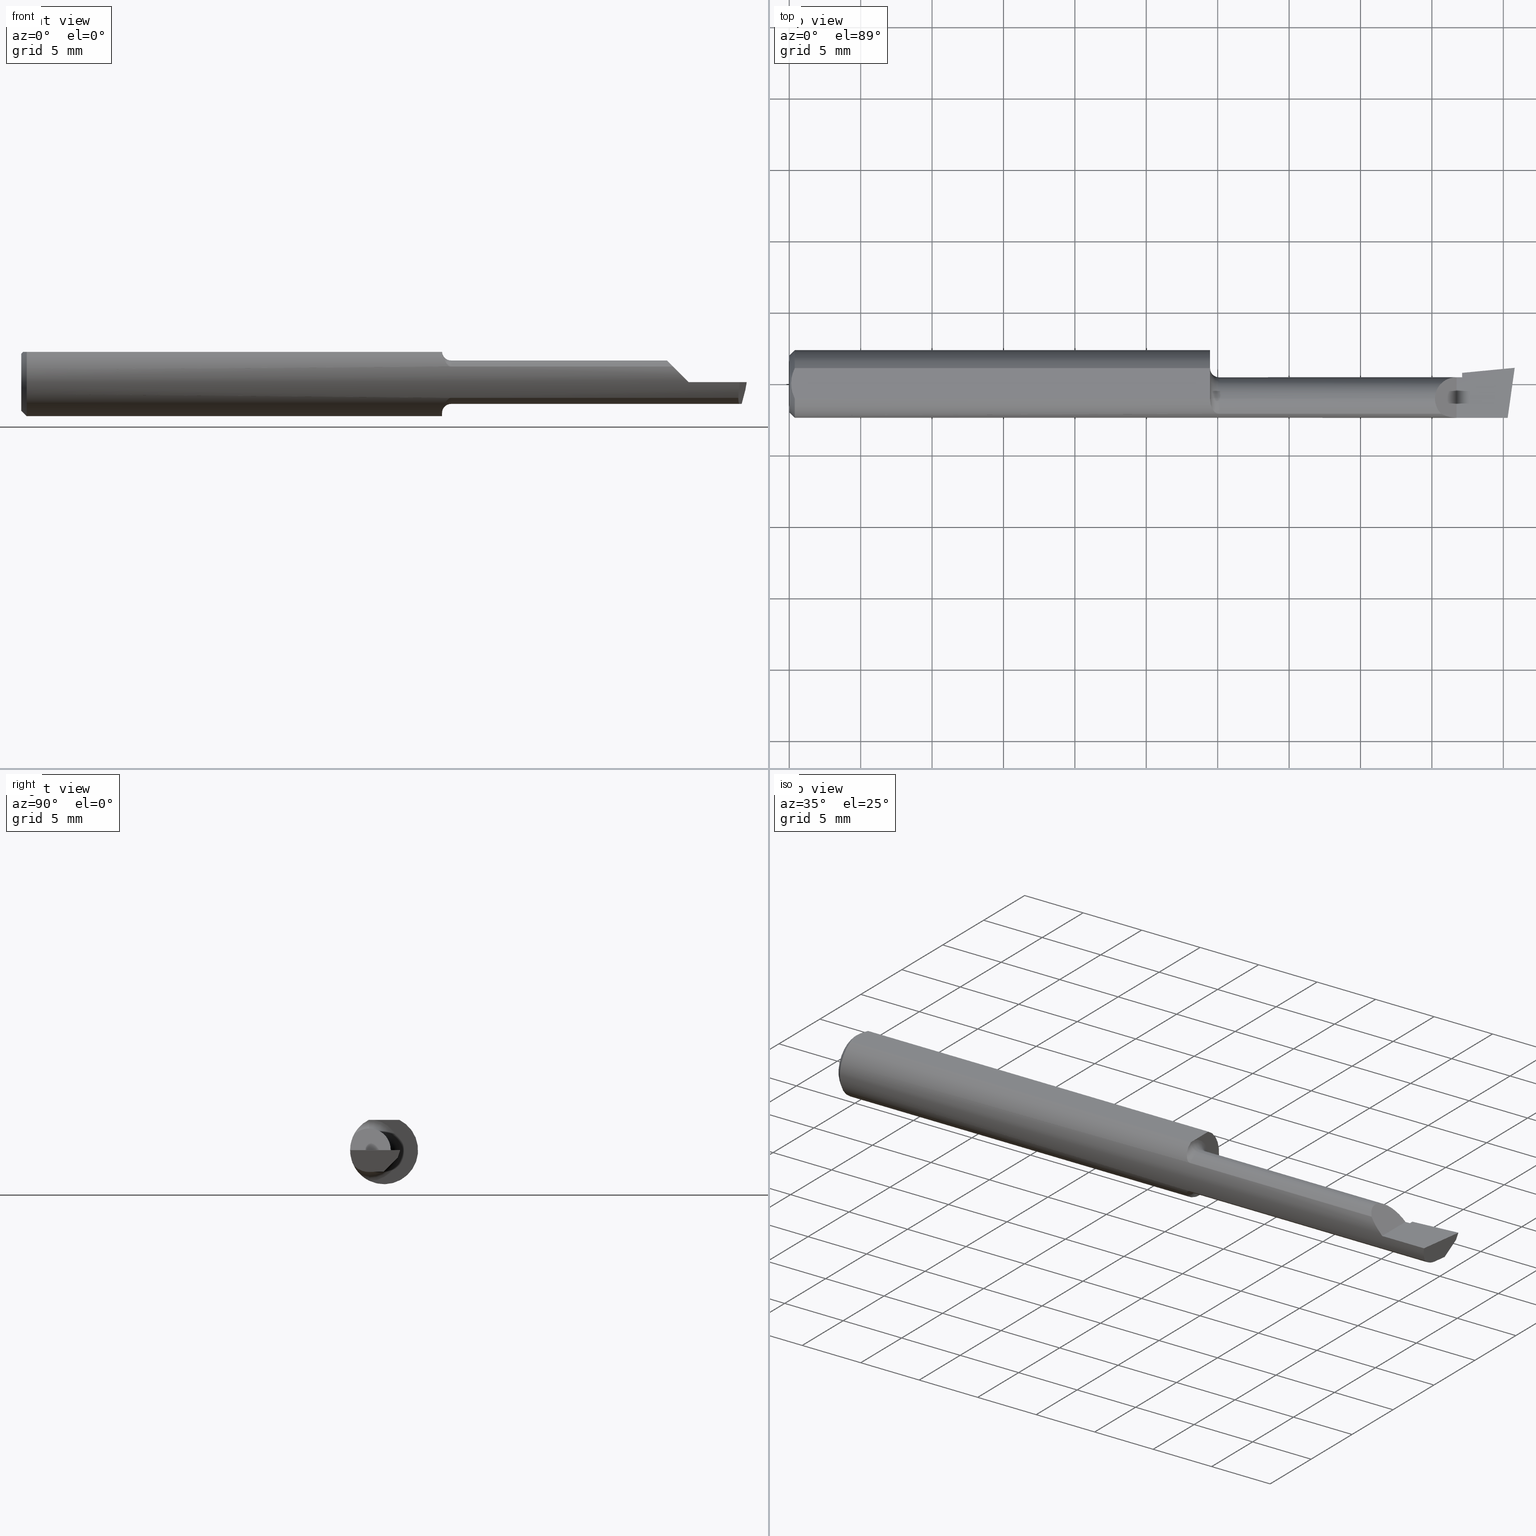
[diagram: canonical four-view strip — front | top / right | iso, engineering-drawing reading convention]
A machine part, canonical four-view strip (front | top / right | iso — engineering-drawing reading convention). The complete STEP part file that produces these views, byte-faithful:
ISO-10303-21;
HEADER;
FILE_DESCRIPTION (( 'STEP AP203' ),
    '1' );
FILE_NAME ('217324-B140800.STEP',
    '2024-04-23T16:12:43',
    ( '' ),
    ( '' ),
    'SwSTEP 2.0',
    'SolidWorks 2022',
    '' );
FILE_SCHEMA (( 'CONFIG_CONTROL_DESIGN' ));
ENDSEC;

DATA;
#1 = CARTESIAN_POINT ( 'NONE',  ( 1.520000000000000240, -0.08307469879518081246, 0.04312255117789283443 ) ) ;
#2 = ADVANCED_FACE ( 'NONE', ( #275 ), #384, .F. ) ;
#3 = VERTEX_POINT ( 'NONE', #586 ) ;
#4 = COORDINATED_UNIVERSAL_TIME_OFFSET ( 8, 0, .BEHIND. ) ;
#5 = CARTESIAN_POINT ( 'NONE',  ( 1.840000000000000080, -0.09360000000000005815, 1.959434878635762025E-17 ) ) ;
#6 = DIRECTION ( 'NONE',  ( 0.000000000000000000, 0.000000000000000000, -1.000000000000000000 ) ) ;
#7 = AXIS2_PLACEMENT_3D ( 'NONE', #139, #197, #510 ) ;
#8 = CIRCLE ( 'NONE', #411, 0.09360000000000001652 ) ;
#9 = DATE_TIME_ROLE ( 'classification_date' ) ;
#10 = CIRCLE ( 'NONE', #177, 0.09360000000000001652 ) ;
#11 = LINE ( 'NONE', #656, #60 ) ;
#12 = EDGE_LOOP ( 'NONE', ( #681, #195, #440, #626, #54 ) ) ;
#13 = APPLICATION_PROTOCOL_DEFINITION ( 'international standard', 'config_control_design', 1994, #523 ) ;
#14 = LINE ( 'NONE', #338, #610 ) ;
#15 = CARTESIAN_POINT ( 'NONE',  ( 5.659797890829555466E-31, -0.09359999999999998876, 1.030335658007946046E-15 ) ) ;
#16 = EDGE_CURVE ( 'NONE', #415, #374, #36, .T. ) ;
#17 = DIRECTION ( 'NONE',  ( 0.000000000000000000, 0.000000000000000000, 1.000000000000000000 ) ) ;
#18 = CARTESIAN_POINT ( 'NONE',  ( 0.01499999999999999598, 0.04209513035969837669, 0.08360000000000000764 ) ) ;
#19 = DIRECTION ( 'NONE',  ( 0.000000000000000000, 0.000000000000000000, 1.000000000000000000 ) ) ;
#20 = AXIS2_PLACEMENT_3D ( 'NONE', #362, #303, #513 ) ;
#21 = AXIS2_PLACEMENT_3D ( 'NONE', #365, #159, #373 ) ;
#22 = DIRECTION ( 'NONE',  ( -1.000000000000000000, -0.000000000000000000, -0.000000000000000000 ) ) ;
#23 = AXIS2_PLACEMENT_3D ( 'NONE', #66, #492, #184 ) ;
#24 = CC_DESIGN_PERSON_AND_ORGANIZATION_ASSIGNMENT ( #594, #392, ( #630 ) ) ;
#25 = DIRECTION ( 'NONE',  ( -1.000000000000000000, -0.000000000000000000, -0.000000000000000000 ) ) ;
#26 = CARTESIAN_POINT ( 'NONE',  ( 1.980500467317811930, -0.04150000000000000216, -0.05990000000000000185 ) ) ;
#27 = APPLICATION_CONTEXT ( 'configuration controlled 3d designs of mechanical parts and assemblies' ) ;
#28 = CARTESIAN_POINT ( 'NONE',  ( 0.005981829149300843529, 0.01454044632356567453, 0.08360000000000003539 ) ) ;
#29 = EDGE_CURVE ( 'NONE', #394, #271, #288, .T. ) ;
#30 = VERTEX_POINT ( 'NONE', #412 ) ;
#31 = CARTESIAN_POINT ( 'NONE',  ( 0.01499999999999999598, 0.000000000000000000, -0.09360000000000001652 ) ) ;
#32 = VECTOR ( 'NONE', #37, 39.37007874015748143 ) ;
#33 = CARTESIAN_POINT ( 'NONE',  ( 1.520000000000000240, -0.08307469879518081246, -0.04312255117789283443 ) ) ;
#34 = EDGE_LOOP ( 'NONE', ( #498, #349 ) ) ;
#35 = CARTESIAN_POINT ( 'NONE',  ( 2.000000000000000000, 0.1436000000000000332, 0.08359999999999999376 ) ) ;
#36 = CIRCLE ( 'NONE', #549, 0.08489999999999991998 ) ;
#37 = DIRECTION ( 'NONE',  ( 0.000000000000000000, 1.000000000000000000, 0.000000000000000000 ) ) ;
#38 = ORIENTED_EDGE ( 'NONE', *, *, #585, .F. ) ;
#39 = CARTESIAN_POINT ( 'NONE',  ( 1.976737781047570364, -0.08307469879518081246, -0.04312255117789283443 ) ) ;
#40 = DIRECTION ( 'NONE',  ( -1.000000000000000000, -0.000000000000000000, -0.000000000000000000 ) ) ;
#41 = ORIENTED_EDGE ( 'NONE', *, *, #73, .F. ) ;
#42 = EDGE_CURVE ( 'NONE', #532, #51, #377, .T. ) ;
#43 = CARTESIAN_POINT ( 'NONE',  ( 1.160000000000000142, -0.04014498638740782860, -0.08455714216888012003 ) ) ;
#44 = LINE ( 'NONE', #267, #278 ) ;
#45 = ORIENTED_EDGE ( 'NONE', *, *, #508, .F. ) ;
#46 = LOCAL_TIME ( 9, 12, 43.00000000000000000, #118 ) ;
#47 = FACE_OUTER_BOUND ( 'NONE', #281, .T. ) ;
#48 = CC_DESIGN_DATE_AND_TIME_ASSIGNMENT ( #61, #9, ( #274 ) ) ;
#49 = CARTESIAN_POINT ( 'NONE',  ( 1.175413575230843666, -0.08042664989327168168, 0.04791921015131045403 ) ) ;
#50 = AXIS2_PLACEMENT_3D ( 'NONE', #35, #561, #82 ) ;
#51 = VERTEX_POINT ( 'NONE', #657 ) ;
#52 = FACE_OUTER_BOUND ( 'NONE', #100, .T. ) ;
#53 = EDGE_CURVE ( 'NONE', #140, #271, #631, .T. ) ;
#54 = ORIENTED_EDGE ( 'NONE', *, *, #55, .T. ) ;
#55 = EDGE_CURVE ( 'NONE', #437, #596, #473, .T. ) ;
#56 = CARTESIAN_POINT ( 'NONE',  ( 1.959426181223736352, -0.2442977216421195752, -4.600835489049771365E-17 ) ) ;
#57 = ORIENTED_EDGE ( 'NONE', *, *, #63, .T. ) ;
#58 = AXIS2_PLACEMENT_3D ( 'NONE', #307, #474, #525 ) ;
#59 = ORIENTED_EDGE ( 'NONE', *, *, #63, .F. ) ;
#60 = VECTOR ( 'NONE', #346, 39.37007874015748854 ) ;
#61 = DATE_AND_TIME ( #65, #607 ) ;
#62 = DIRECTION ( 'NONE',  ( 0.000000000000000000, 0.000000000000000000, 1.000000000000000000 ) ) ;
#63 = EDGE_CURVE ( 'NONE', #535, #3, #353, .T. ) ;
#64 = VERTEX_POINT ( 'NONE', #553 ) ;
#65 = CALENDAR_DATE ( 2024, 23, 4 ) ;
#66 = CARTESIAN_POINT ( 'NONE',  ( 0.000000000000000000, 0.000000000000000000, 0.000000000000000000 ) ) ;
#67 = CARTESIAN_POINT ( 'NONE',  ( 0.000000000000000000, 0.000000000000000000, 0.000000000000000000 ) ) ;
#68 = APPROVAL_ROLE ( '' ) ;
#69 = CARTESIAN_POINT ( 'NONE',  ( 2.000000000000000000, -0.04150000000000000216, -0.05990000000000000185 ) ) ;
#70 = VERTEX_POINT ( 'NONE', #74 ) ;
#71 = DATE_TIME_ROLE ( 'creation_date' ) ;
#72 = DIRECTION ( 'NONE',  ( -1.000000000000000000, -0.000000000000000000, -0.000000000000000000 ) ) ;
#73 = EDGE_CURVE ( 'NONE', #421, #532, #521, .T. ) ;
#74 = CARTESIAN_POINT ( 'NONE',  ( 1.160033712670299977, -0.04209513036081732190, 0.08360000000000000764 ) ) ;
#75 = ADVANCED_FACE ( 'NONE', ( #293 ), #152, .F. ) ;
#76 = CYLINDRICAL_SURFACE ( 'NONE', #23, 0.09360000000000001652 ) ;
#77 = CARTESIAN_POINT ( 'NONE',  ( 0.01499999999999999944, -0.04209513035969835587, 0.08360000000000000764 ) ) ;
#78 = ORIENTED_EDGE ( 'NONE', *, *, #327, .F. ) ;
#79 = CARTESIAN_POINT ( 'NONE',  ( 1.995372633473332602, 0.03556691549515143130, -0.02730803879157319217 ) ) ;
#80 = CARTESIAN_POINT ( 'NONE',  ( 1.780099999999999349, -0.04150000000000000216, 0.05989999999999996022 ) ) ;
#81 = ADVANCED_FACE ( 'NONE', ( #343 ), #203, .T. ) ;
#82 = DIRECTION ( 'NONE',  ( 0.000000000000000000, 1.000000000000000000, -1.189000693621284344E-16 ) ) ;
#83 = VECTOR ( 'NONE', #650, 39.37007874015748854 ) ;
#84 = ADVANCED_FACE ( 'NONE', ( #551 ), #126, .T. ) ;
#85 = CARTESIAN_POINT ( 'NONE',  ( 0.01499999999999999598, 1.146269404001922775E-17, 0.09360000000000001652 ) ) ;
#86 =( BOUNDED_CURVE ( )  B_SPLINE_CURVE ( 3, ( #147, #138, #94, #463 ),
 .UNSPECIFIED., .F., .F. ) 
 B_SPLINE_CURVE_WITH_KNOTS ( ( 4, 4 ),
 ( 0.000000000000000000, 1.570796326794896558 ),
 .UNSPECIFIED. ) 
 CURVE ( )  GEOMETRIC_REPRESENTATION_ITEM ( )  RATIONAL_B_SPLINE_CURVE ( ( 1.000000000000000000, 0.8047378541243649375, 0.8047378541243649375, 1.000000000000000000 ) ) 
 REPRESENTATION_ITEM ( '' )  );
#87 = EDGE_LOOP ( 'NONE', ( #117, #41, #589, #401 ) ) ;
#88 = CARTESIAN_POINT ( 'NONE',  ( 1.167076397983111580, -0.07187891021191479546, -0.06019546731975692483 ) ) ;
#89 = CARTESIAN_POINT ( 'NONE',  ( 1.796877448822106649, -0.08307469879518082634, 0.04312255117789279973 ) ) ;
#90 =( BOUNDED_CURVE ( )  B_SPLINE_CURVE ( 3, ( #672, #658, #557, #26 ),
 .UNSPECIFIED., .F., .F. ) 
 B_SPLINE_CURVE_WITH_KNOTS ( ( 4, 4 ),
 ( 0.08075344428592796941, 0.8478785220698573655 ),
 .UNSPECIFIED. ) 
 CURVE ( )  GEOMETRIC_REPRESENTATION_ITEM ( )  RATIONAL_B_SPLINE_CURVE ( ( 1.000000000000000000, 0.9515582177473687064, 0.9515582177473687064, 1.000000000000000000 ) ) 
 REPRESENTATION_ITEM ( '' )  );
#91 = CARTESIAN_POINT ( 'NONE',  ( 1.182100790213033825, -0.08307469879518074307, -0.04312255117789293851 ) ) ;
#92 = PRODUCT_RELATED_PRODUCT_CATEGORY ( 'detail', '', ( #110 ) ) ;
#93 = DIRECTION ( 'NONE',  ( 0.000000000000000000, 0.000000000000000000, 1.000000000000000000 ) ) ;
#94 = CARTESIAN_POINT ( 'NONE',  ( 1.804911392386147506, 0.01839999999999995459, 0.03508860761385158150 ) ) ;
#95 = LINE ( 'NONE', #309, #344 ) ;
#96 = EDGE_CURVE ( 'NONE', #132, #421, #356, .T. ) ;
#97 = ORIENTED_EDGE ( 'NONE', *, *, #407, .F. ) ;
#98 = DIRECTION ( 'NONE',  ( 1.000000000000000000, 0.000000000000000000, 0.000000000000000000 ) ) ;
#99 = DIRECTION ( 'NONE',  ( -1.000000000000000000, -0.000000000000000000, -0.000000000000000000 ) ) ;
#100 = EDGE_LOOP ( 'NONE', ( #38, #636, #265, #449, #491 ) ) ;
#101 = CARTESIAN_POINT ( 'NONE',  ( 1.169277238843646760, -0.07518688180277835476, 0.05595855205935822835 ) ) ;
#102 = VERTEX_POINT ( 'NONE', #611 ) ;
#103 =( LENGTH_UNIT ( ) NAMED_UNIT ( * ) SI_UNIT ( $, .METRE. ) );
#104 = EDGE_CURVE ( 'NONE', #30, #596, #131, .T. ) ;
#105 = EDGE_CURVE ( 'NONE', #596, #371, #198, .T. ) ;
#106 = CIRCLE ( 'NONE', #426, 0.07859999999999965625 ) ;
#107 = EDGE_LOOP ( 'NONE', ( #59, #577, #166, #199, #671, #593, #255, #323, #368, #301, #580, #45, #570 ) ) ;
#108 = CARTESIAN_POINT ( 'NONE',  ( 1.160000000000000142, 0.1436000000000000332, 0.08359999999999999376 ) ) ;
#109 = VERTEX_POINT ( 'NONE', #253 ) ;
#110 = PRODUCT ( '217324-B140800', '217324-B140800', '', ( #397 ) ) ;
#111 = DIRECTION ( 'NONE',  ( -1.000000000000000000, -0.000000000000000000, -0.000000000000000000 ) ) ;
#112 = LOCAL_TIME ( 9, 12, 43.00000000000000000, #235 ) ;
#113 = CARTESIAN_POINT ( 'NONE',  ( 1.160163936266329632, -0.04714148439379606259, 0.08105900800344767454 ) ) ;
#114 = EDGE_LOOP ( 'NONE', ( #640, #176, #583, #685, #529, #563 ) ) ;
#115 = AXIS2_PLACEMENT_3D ( 'NONE', #158, #431, #536 ) ;
#116 = PLANE ( 'NONE',  #290 ) ;
#117 = ORIENTED_EDGE ( 'NONE', *, *, #42, .F. ) ;
#118 = COORDINATED_UNIVERSAL_TIME_OFFSET ( 8, 0, .BEHIND. ) ;
#119 = CARTESIAN_POINT ( 'NONE',  ( 0.000000000000000000, -0.04150000000000000216, 0.05989999999999996022 ) ) ;
#120 = EDGE_LOOP ( 'NONE', ( #471, #251, #326, #482 ) ) ;
#121 = APPROVAL_ROLE ( '' ) ;
#122 = CARTESIAN_POINT ( 'NONE',  ( 1.854999999999999982, -0.04150000000000000216, -0.05990000000000000185 ) ) ;
#123 = ADVANCED_FACE ( 'NONE', ( #188 ), #143, .F. ) ;
#124 = ADVANCED_FACE ( 'NONE', ( #467 ), #676, .F. ) ;
#125 = ORIENTED_EDGE ( 'NONE', *, *, #497, .T. ) ;
#126 = CONICAL_SURFACE ( 'NONE', #231, 0.09360000000000001652, 0.7853981633974601584 ) ;
#127 = PERSON_AND_ORGANIZATION ( #404, #259 ) ;
#128 = AXIS2_PLACEMENT_3D ( 'NONE', #169, #574, #324 ) ;
#129 = DIRECTION ( 'NONE',  ( -0.1591707190595631760, -0.3038377020810786866, -0.9393334514367894794 ) ) ;
#130 = B_SPLINE_CURVE_WITH_KNOTS ( 'NONE', 3,
 ( #360, #91, #154, #470, #461, #193, #88, #409, #666, #366, #669, #422 ),
 .UNSPECIFIED., .F., .F.,
 ( 4, 2, 2, 2, 2, 4 ),
 ( 1.963546462201886234E-07, 0.0002171101490734176048, 0.0004340239435006150535, 0.0008678515323550098966, 0.001301679121209404740, 0.001735506710063799583 ),
 .UNSPECIFIED. ) ;
#131 = LINE ( 'NONE', #85, #558 ) ;
#132 = VERTEX_POINT ( 'NONE', #601 ) ;
#133 = PERSON_AND_ORGANIZATION_ROLE ( 'design_owner' ) ;
#134 = DIRECTION ( 'NONE',  ( 0.9953961983671787417, 0.09584575252022466130, -5.467869873542577569E-16 ) ) ;
#135 = DIRECTION ( 'NONE',  ( 1.000000000000000000, 0.000000000000000000, 0.000000000000000000 ) ) ;
#136 =( BOUNDED_CURVE ( )  B_SPLINE_CURVE ( 3, ( #242, #591, #180, #547 ),
 .UNSPECIFIED., .F., .T. ) 
 B_SPLINE_CURVE_WITH_KNOTS ( ( 4, 4 ),
 ( 0.2441216721730426198, 0.7229178047250387484 ),
 .UNSPECIFIED. ) 
 CURVE ( )  GEOMETRIC_REPRESENTATION_ITEM ( )  RATIONAL_B_SPLINE_CURVE ( ( 1.000000000000000000, 0.9809872534005956712, 0.9809872534005956712, 1.000000000000000000 ) ) 
 REPRESENTATION_ITEM ( '' )  );
#137 = EDGE_CURVE ( 'NONE', #599, #437, #8, .T. ) ;
#138 = CARTESIAN_POINT ( 'NONE',  ( 1.780099999999999349, -0.006411392386148422398, 0.05989999999999994634 ) ) ;
#139 = CARTESIAN_POINT ( 'NONE',  ( 0.000000000000000000, -0.04150000000000000216, 0.000000000000000000 ) ) ;
#140 = VERTEX_POINT ( 'NONE', #673 ) ;
#141 = DIRECTION ( 'NONE',  ( -0.7071067811865433539, 0.000000000000000000, -0.7071067811865516806 ) ) ;
#142 = AXIS2_PLACEMENT_3D ( 'NONE', #466, #512, #416 ) ;
#143 = PLANE ( 'NONE',  #20 ) ;
#144 = EDGE_LOOP ( 'NONE', ( #224, #545, #573, #214 ) ) ;
#145 = FACE_OUTER_BOUND ( 'NONE', #87, .T. ) ;
#146 = CARTESIAN_POINT ( 'NONE',  ( 1.854999999999999982, -0.2500000000000000555, 1.135460985248596835E-17 ) ) ;
#147 = CARTESIAN_POINT ( 'NONE',  ( 1.780099999999999349, -0.04150000000000000216, 0.05989999999999996022 ) ) ;
#148 = EDGE_CURVE ( 'NONE', #271, #3, #256, .T. ) ;
#149 = CC_DESIGN_SECURITY_CLASSIFICATION ( #274, ( #317 ) ) ;
#150 = CARTESIAN_POINT ( 'NONE',  ( 0.01499999999999999598, 0.000000000000000000, 0.000000000000000000 ) ) ;
#151 = ORIENTED_EDGE ( 'NONE', *, *, #399, .F. ) ;
#152 = TOROIDAL_SURFACE ( 'NONE', #410, 0.08489999999999991998, 0.02499999999999993894 ) ;
#153 = B_SPLINE_CURVE_WITH_KNOTS ( 'NONE', 3,
 ( #299, #305, #43, #252 ),
 .UNSPECIFIED., .F., .F.,
 ( 4, 4 ),
 ( 0.001735506710063799583, 0.001793010945052101509 ),
 .UNSPECIFIED. ) ;
#154 = CARTESIAN_POINT ( 'NONE',  ( 1.179498465877714120, -0.08233174416856384181, -0.04456779206614402966 ) ) ;
#155 = VECTOR ( 'NONE', #277, 39.37007874015748854 ) ;
#156 = DIRECTION ( 'NONE',  ( 0.000000000000000000, 1.000000000000000000, 0.000000000000000000 ) ) ;
#157 = ORIENTED_EDGE ( 'NONE', *, *, #575, .T. ) ;
#158 = CARTESIAN_POINT ( 'NONE',  ( 0.000000000000000000, 0.000000000000000000, 0.000000000000000000 ) ) ;
#159 = DIRECTION ( 'NONE',  ( 0.09165774897393337561, -0.9519021185660612172, 0.2923717047227308297 ) ) ;
#160 = ORIENTED_EDGE ( 'NONE', *, *, #407, .T. ) ;
#161 = CARTESIAN_POINT ( 'NONE',  ( 1.160010473476444259, -0.03163306423249848121, 0.08360000000000000764 ) ) ;
#162 = EDGE_CURVE ( 'NONE', #319, #395, #44, .T. ) ;
#163 = B_SPLINE_CURVE_WITH_KNOTS ( 'NONE', 3,
 ( #472, #682, #161, #321, #581, #438 ),
 .UNSPECIFIED., .F., .F.,
 ( 4, 2, 4 ),
 ( 0.0007618363005527917491, 0.0009495817850258247419, 0.001137327269498857735 ),
 .UNSPECIFIED. ) ;
#164 = ORIENTED_EDGE ( 'NONE', *, *, #205, .T. ) ;
#165 = DIRECTION ( 'NONE',  ( 0.000000000000000000, -1.000000000000000000, 1.189000693621284344E-16 ) ) ;
#166 = ORIENTED_EDGE ( 'NONE', *, *, #96, .T. ) ;
#167 = DIRECTION ( 'NONE',  ( 0.1391731009600840341, 0.9902680687415675864, -7.872251151835709811E-17 ) ) ;
#168 = VERTEX_POINT ( 'NONE', #477 ) ;
#169 = CARTESIAN_POINT ( 'NONE',  ( 0.000000000000000000, -0.04150000000000000216, 0.000000000000000000 ) ) ;
#170 = PLANE ( 'NONE',  #21 ) ;
#171 = ADVANCED_FACE ( 'NONE', ( #439 ), #280, .F. ) ;
#172 = ORIENTED_EDGE ( 'NONE', *, *, #16, .F. ) ;
#173 = PERSON_AND_ORGANIZATION ( #404, #259 ) ;
#174 = DIRECTION ( 'NONE',  ( 0.000000000000000000, 0.000000000000000000, -1.000000000000000000 ) ) ;
#175 = AXIS2_PLACEMENT_3D ( 'NONE', #295, #616, #348 ) ;
#176 = ORIENTED_EDGE ( 'NONE', *, *, #665, .T. ) ;
#177 = AXIS2_PLACEMENT_3D ( 'NONE', #335, #393, #648 ) ;
#178 = APPROVAL ( #503, 'UNSPECIFIED' ) ;
#179 = DESIGN_CONTEXT ( 'detailed design', #523, 'design' ) ;
#180 = CARTESIAN_POINT ( 'NONE',  ( 1.978735214319866875, -0.09360000000000001652, -0.01508292493422504904 ) ) ;
#181 = EDGE_LOOP ( 'NONE', ( #475, #522, #220 ) ) ;
#182 = EDGE_CURVE ( 'NONE', #70, #102, #417, .T. ) ;
#183 = PERSON_AND_ORGANIZATION ( #404, #259 ) ;
#184 = DIRECTION ( 'NONE',  ( 0.000000000000000000, 0.000000000000000000, 1.000000000000000000 ) ) ;
#185 = ORIENTED_EDGE ( 'NONE', *, *, #222, .T. ) ;
#186 = PERSON_AND_ORGANIZATION ( #404, #259 ) ;
#187 = LINE ( 'NONE', #292, #459 ) ;
#188 = FACE_OUTER_BOUND ( 'NONE', #619, .T. ) ;
#189 = EDGE_LOOP ( 'NONE', ( #456, #683, #172, #157, #125, #333 ) ) ;
#190 = CALENDAR_DATE ( 2024, 23, 4 ) ;
#191 = LINE ( 'NONE', #398, #233 ) ;
#192 = EDGE_CURVE ( 'NONE', #319, #64, #226, .T. ) ;
#193 = CARTESIAN_POINT ( 'NONE',  ( 1.169237437666585722, -0.07513599091569005128, -0.05602756047418846336 ) ) ;
#194 = CARTESIAN_POINT ( 'NONE',  ( 0.005000000000000227353, -0.007328888879231044290, 0.08360000000000000764 ) ) ;
#195 = ORIENTED_EDGE ( 'NONE', *, *, #325, .F. ) ;
#196 = PLANE ( 'NONE',  #50 ) ;
#197 = DIRECTION ( 'NONE',  ( -1.000000000000000000, -0.000000000000000000, -0.000000000000000000 ) ) ;
#198 = B_SPLINE_CURVE_WITH_KNOTS ( 'NONE', 3,
 ( #300, #511, #28, #454, #250, #464 ),
 .UNSPECIFIED., .F., .F.,
 ( 4, 2, 4 ),
 ( 0.006881281100865560205, 0.007427683811376459971, 0.007974086521887359738 ),
 .UNSPECIFIED. ) ;
#199 = ORIENTED_EDGE ( 'NONE', *, *, #73, .T. ) ;
#200 = AXIS2_PLACEMENT_3D ( 'NONE', #264, #313, #223 ) ;
#201 = CARTESIAN_POINT ( 'NONE',  ( 1.160033822879743992, -0.04150000000000000216, 0.08360000000000000764 ) ) ;
#202 = CONICAL_SURFACE ( 'NONE', #381, 0.09360000000000001652, 0.7853981633974601584 ) ;
#203 = CYLINDRICAL_SURFACE ( 'NONE', #7, 0.05989999999999996022 ) ;
#204 = CARTESIAN_POINT ( 'NONE',  ( 1.160033822879743992, -0.04159918775988086237, 0.08360000000000000764 ) ) ;
#205 = EDGE_CURVE ( 'NONE', #358, #109, #318, .T. ) ;
#206 = CARTESIAN_POINT ( 'NONE',  ( 1.185000000000000053, -0.04150000000000000216, 0.000000000000000000 ) ) ;
#207 = VERTEX_POINT ( 'NONE', #213 ) ;
#208 = CARTESIAN_POINT ( 'NONE',  ( 0.01499999999999999944, -0.04209513035969835587, 0.08360000000000000764 ) ) ;
#209 = DIRECTION ( 'NONE',  ( 0.000000000000000000, 0.2936076258024065688, 0.9559260233253794592 ) ) ;
#210 = VERTEX_POINT ( 'NONE', #638 ) ;
#211 = LINE ( 'NONE', #221, #414 ) ;
#212 = VECTOR ( 'NONE', #533, 39.37007874015748143 ) ;
#213 = CARTESIAN_POINT ( 'NONE',  ( 1.160000000000000142, 0.04209513035969836975, 0.08360000000000000764 ) ) ;
#214 = ORIENTED_EDGE ( 'NONE', *, *, #162, .T. ) ;
#215 = ADVANCED_FACE ( 'NONE', ( #625 ), #170, .F. ) ;
#216 = ORIENTED_EDGE ( 'NONE', *, *, #615, .F. ) ;
#217 = CARTESIAN_POINT ( 'NONE',  ( 0.000000000000000000, -0.04149999999999999523, -0.05989999999999996022 ) ) ;
#218 = ORIENTED_EDGE ( 'NONE', *, *, #518, .T. ) ;
#219 = DIRECTION ( 'NONE',  ( 0.000000000000000000, 0.000000000000000000, -1.000000000000000000 ) ) ;
#220 = ORIENTED_EDGE ( 'NONE', *, *, #148, .T. ) ;
#221 = CARTESIAN_POINT ( 'NONE',  ( 1.854999999999999982, 0.03726901833842542755, -0.006627062419125364159 ) ) ;
#222 = EDGE_CURVE ( 'NONE', #378, #395, #576, .T. ) ;
#223 = DIRECTION ( 'NONE',  ( 0.000000000000000000, 0.000000000000000000, 1.000000000000000000 ) ) ;
#224 = ORIENTED_EDGE ( 'NONE', *, *, #276, .T. ) ;
#225 = PERSON_AND_ORGANIZATION ( #404, #259 ) ;
#226 = LINE ( 'NONE', #618, #155 ) ;
#227 = CC_DESIGN_PERSON_AND_ORGANIZATION_ASSIGNMENT ( #173, #345, ( #317 ) ) ;
#228 = ORIENTED_EDGE ( 'NONE', *, *, #53, .F. ) ;
#229 = CALENDAR_DATE ( 2024, 23, 4 ) ;
#230 = FACE_OUTER_BOUND ( 'NONE', #506, .T. ) ;
#231 = AXIS2_PLACEMENT_3D ( 'NONE', #663, #135, #556 ) ;
#232 = CARTESIAN_POINT ( 'NONE',  ( 1.160000000000000142, -0.04150000000000000216, 0.000000000000000000 ) ) ;
#233 = VECTOR ( 'NONE', #595, 39.37007874015748143 ) ;
#234 = EDGE_CURVE ( 'NONE', #371, #599, #662, .T. ) ;
#235 = COORDINATED_UNIVERSAL_TIME_OFFSET ( 8, 0, .BEHIND. ) ;
#236 = FACE_OUTER_BOUND ( 'NONE', #486, .T. ) ;
#237 = ORIENTED_EDGE ( 'NONE', *, *, #453, .T. ) ;
#238 = DATE_AND_TIME ( #190, #579 ) ;
#239 = CARTESIAN_POINT ( 'NONE',  ( 1.854999999999999982, 0.01839999999999999969, 1.030335658007946834E-15 ) ) ;
#240 = DIRECTION ( 'NONE',  ( 0.7071067811865391350, 8.659560562355035164E-17, 0.7071067811865558994 ) ) ;
#241 = APPROVAL_DATE_TIME ( #597, #458 ) ;
#242 = CARTESIAN_POINT ( 'NONE',  ( 1.976737781047570364, -0.08307469879518081246, -0.04312255117789283443 ) ) ;
#243 = CARTESIAN_POINT ( 'NONE',  ( 1.780099999999999127, -0.05720488466914008113, 0.05989999999999996022 ) ) ;
#244 = AXIS2_PLACEMENT_3D ( 'NONE', #524, #614, #419 ) ;
#245 = DIRECTION ( 'NONE',  ( 0.000000000000000000, 0.000000000000000000, 1.000000000000000000 ) ) ;
#246 = ADVANCED_BREP_SHAPE_REPRESENTATION ( '217324-B140800', ( #592, #468 ), #590 ) ;
#247 = DIRECTION ( 'NONE',  ( -0.000000000000000000, 1.000000000000000000, 1.224646799147353207E-16 ) ) ;
#248 = VECTOR ( 'NONE', #442, 39.37007874015748143 ) ;
#249 = CARTESIAN_POINT ( 'NONE',  ( 5.659797890829555466E-31, 0.01839999999999994765, 1.030335658007946046E-15 ) ) ;
#250 = CARTESIAN_POINT ( 'NONE',  ( 0.01203648650249651043, 0.03550565407121124978, 0.08360000000000000764 ) ) ;
#251 = ORIENTED_EDGE ( 'NONE', *, *, #389, .T. ) ;
#252 = CARTESIAN_POINT ( 'NONE',  ( 1.160000000000000142, -0.03946024096385560009, -0.08487549341873927566 ) ) ;
#253 = CARTESIAN_POINT ( 'NONE',  ( 1.854999999999999982, -0.01441399783868786352, -0.05990000000000000185 ) ) ;
#254 = EDGE_CURVE ( 'NONE', #102, #140, #306, .T. ) ;
#255 = ORIENTED_EDGE ( 'NONE', *, *, #645, .T. ) ;
#256 = CIRCLE ( 'NONE', #200, 0.05989999999999991859 ) ;
#257 = EDGE_CURVE ( 'NONE', #102, #532, #490, .T. ) ;
#258 = CARTESIAN_POINT ( 'NONE',  ( 1.980500467317811930, -0.04150000000000000216, -0.05990000000000000185 ) ) ;
#259 = ORGANIZATION ( 'UNSPECIFIED', 'UNSPECIFIED', '' ) ;
#260 = TOROIDAL_SURFACE ( 'NONE', #517, 0.08489999999999991998, 0.02499999999999993894 ) ;
#261 = DIRECTION ( 'NONE',  ( -1.000000000000000000, -0.000000000000000000, -0.000000000000000000 ) ) ;
#262 = ORIENTED_EDGE ( 'NONE', *, *, #55, .F. ) ;
#263 = CARTESIAN_POINT ( 'NONE',  ( 0.000000000000000000, 0.000000000000000000, -0.07859999999999965625 ) ) ;
#264 = CARTESIAN_POINT ( 'NONE',  ( 1.185000000000000053, -0.04150000000000000216, 0.000000000000000000 ) ) ;
#265 = ORIENTED_EDGE ( 'NONE', *, *, #105, .T. ) ;
#266 = ADVANCED_FACE ( 'NONE', ( #566 ), #260, .F. ) ;
#267 = CARTESIAN_POINT ( 'NONE',  ( 1.854999999999999982, 0.03043808801135869033, -6.049254294211750709E-16 ) ) ;
#268 = ORIENTED_EDGE ( 'NONE', *, *, #481, .T. ) ;
#269 = FACE_OUTER_BOUND ( 'NONE', #120, .T. ) ;
#270 = AXIS2_PLACEMENT_3D ( 'NONE', #351, #452, #174 ) ;
#271 = VERTEX_POINT ( 'NONE', #670 ) ;
#272 = ORIENTED_EDGE ( 'NONE', *, *, #645, .F. ) ;
#273 = LINE ( 'NONE', #108, #322 ) ;
#274 = SECURITY_CLASSIFICATION ( '', '', #334 ) ;
#275 = FACE_OUTER_BOUND ( 'NONE', #34, .T. ) ;
#276 = EDGE_CURVE ( 'NONE', #395, #210, #95, .T. ) ;
#277 = DIRECTION ( 'NONE',  ( 0.9953961983671800740, 0.09584575252021028391, -0.000000000000000000 ) ) ;
#278 = VECTOR ( 'NONE', #209, 39.37007874015748854 ) ;
#279 = ORIENTED_EDGE ( 'NONE', *, *, #527, .F. ) ;
#280 = PLANE ( 'NONE',  #58 ) ;
#281 = EDGE_LOOP ( 'NONE', ( #478, #430, #679, #314 ) ) ;
#282 = APPROVAL_STATUS ( 'not_yet_approved' ) ;
#283 = CARTESIAN_POINT ( 'NONE',  ( 1.854999999999999982, 0.03043808801135919340, 1.030335791302337039E-15 ) ) ;
#284 = EDGE_CURVE ( 'NONE', #535, #132, #136, .T. ) ;
#285 = DIRECTION ( 'NONE',  ( 1.000000000000000000, 0.000000000000000000, 0.000000000000000000 ) ) ;
#286 = CALENDAR_DATE ( 2024, 23, 4 ) ;
#287 = CARTESIAN_POINT ( 'NONE',  ( 1.854999999999999982, 0.02429519371539582209, -0.02000000000000000042 ) ) ;
#288 = CIRCLE ( 'NONE', #320, 0.02499999999999993894 ) ;
#289 = EDGE_LOOP ( 'NONE', ( #628, #660, #644 ) ) ;
#290 = AXIS2_PLACEMENT_3D ( 'NONE', #69, #294, #600 ) ;
#291 = CARTESIAN_POINT ( 'NONE',  ( 0.000000000000000000, 0.000000000000000000, 0.000000000000000000 ) ) ;
#292 = CARTESIAN_POINT ( 'NONE',  ( 0.000000000000000000, 0.04209513035969837669, 0.08360000000000000764 ) ) ;
#293 = FACE_OUTER_BOUND ( 'NONE', #363, .T. ) ;
#294 = DIRECTION ( 'NONE',  ( -0.000000000000000000, 0.000000000000000000, 1.000000000000000000 ) ) ;
#295 = CARTESIAN_POINT ( 'NONE',  ( 1.185000000000000053, -0.04150000000000000216, 0.000000000000000000 ) ) ;
#296 = ADVANCED_FACE ( 'NONE', ( #642 ), #297, .T. ) ;
#297 = PLANE ( 'NONE',  #678 ) ;
#298 = CIRCLE ( 'NONE', #244, 0.02499999999999993894 ) ;
#299 = CARTESIAN_POINT ( 'NONE',  ( 1.160020127471513174, -0.04150000000000000216, -0.08389702020930184245 ) ) ;
#300 = CARTESIAN_POINT ( 'NONE',  ( 0.005000000000000236026, 1.025183009042025117E-17, 0.08360000000000000764 ) ) ;
#301 = ORIENTED_EDGE ( 'NONE', *, *, #327, .T. ) ;
#302 = LINE ( 'NONE', #249, #647 ) ;
#303 = DIRECTION ( 'NONE',  ( -0.9828867607227228520, 0.1381357257699200036, 0.1218693434051832114 ) ) ;
#304 = ORIENTED_EDGE ( 'NONE', *, *, #380, .T. ) ;
#305 = CARTESIAN_POINT ( 'NONE',  ( 1.160006719116742913, -0.04082489400077272262, -0.08423096411932438909 ) ) ;
#306 = CIRCLE ( 'NONE', #408, 0.05989999999999991859 ) ;
#307 = CARTESIAN_POINT ( 'NONE',  ( 2.000000000000000000, -0.2500000000000000555, -6.829619984160658046E-17 ) ) ;
#308 = DIRECTION ( 'NONE',  ( 0.000000000000000000, 0.000000000000000000, 1.000000000000000000 ) ) ;
#309 = CARTESIAN_POINT ( 'NONE',  ( 1.107894390816139163, -0.04150000000000000216, 4.217516215662293437E-16 ) ) ;
#310 = VERTEX_POINT ( 'NONE', #444 ) ;
#311 = FACE_OUTER_BOUND ( 'NONE', #538, .T. ) ;
#312 = ADVANCED_FACE ( 'NONE', ( #236 ), #116, .F. ) ;
#313 = DIRECTION ( 'NONE',  ( -1.000000000000000000, -0.000000000000000000, -0.000000000000000000 ) ) ;
#314 = ORIENTED_EDGE ( 'NONE', *, *, #257, .T. ) ;
#315 = APPLICATION_PROTOCOL_DEFINITION ( 'international standard', 'config_control_design', 1994, #27 ) ;
#316 = B_SPLINE_CURVE_WITH_KNOTS ( 'NONE', 3,
 ( #201, #204, #605, #620, #567 ),
 .UNSPECIFIED., .F., .F.,
 ( 4, 1, 4 ),
 ( 0.001137327269498857735, 0.001144877036812689923, 0.001152426804126521894 ),
 .UNSPECIFIED. ) ;
#317 = PRODUCT_DEFINITION_FORMATION_WITH_SPECIFIED_SOURCE ( 'ANY', '', #110, .NOT_KNOWN. ) ;
#318 = LINE ( 'NONE', #520, #539 ) ;
#319 = VERTEX_POINT ( 'NONE', #287 ) ;
#320 = AXIS2_PLACEMENT_3D ( 'NONE', #649, #247, #659 ) ;
#321 = CARTESIAN_POINT ( 'NONE',  ( 1.160027419345087463, -0.03656676420729543242, 0.08359999999999997988 ) ) ;
#322 = VECTOR ( 'NONE', #165, 39.37007874015748143 ) ;
#323 = ORIENTED_EDGE ( 'NONE', *, *, #137, .F. ) ;
#324 = DIRECTION ( 'NONE',  ( 0.000000000000000000, 0.000000000000000000, 1.000000000000000000 ) ) ;
#325 = EDGE_CURVE ( 'NONE', #554, #30, #106, .T. ) ;
#326 = ORIENTED_EDGE ( 'NONE', *, *, #380, .F. ) ;
#327 = EDGE_CURVE ( 'NONE', #371, #207, #187, .T. ) ;
#328 = ORIENTED_EDGE ( 'NONE', *, *, #497, .F. ) ;
#329 = PLANE ( 'NONE',  #509 ) ;
#330 = VECTOR ( 'NONE', #560, 39.37007874015748143 ) ;
#331 = DIRECTION ( 'NONE',  ( -1.000000000000000000, -0.000000000000000000, -0.000000000000000000 ) ) ;
#332 = CIRCLE ( 'NONE', #115, 0.07859999999999965625 ) ;
#333 = ORIENTED_EDGE ( 'NONE', *, *, #53, .T. ) ;
#334 = SECURITY_CLASSIFICATION_LEVEL ( 'unclassified' ) ;
#335 = CARTESIAN_POINT ( 'NONE',  ( 1.160000000000000142, 0.000000000000000000, 0.000000000000000000 ) ) ;
#336 = ADVANCED_FACE ( 'NONE', ( #448 ), #501, .T. ) ;
#337 = ORIENTED_EDGE ( 'NONE', *, *, #182, .T. ) ;
#338 = CARTESIAN_POINT ( 'NONE',  ( 2.000000000000000000, -0.04150000000000000216, -0.05990000000000000185 ) ) ;
#339 = ORIENTED_EDGE ( 'NONE', *, *, #565, .T. ) ;
#340 = DATE_AND_TIME ( #229, #476 ) ;
#341 = CARTESIAN_POINT ( 'NONE',  ( 1.160000000000000142, -0.02669966216601849310, 0.08360000000000000764 ) ) ;
#342 = VECTOR ( 'NONE', #25, 39.37007874015748143 ) ;
#343 = FACE_OUTER_BOUND ( 'NONE', #612, .T. ) ;
#344 = VECTOR ( 'NONE', #134, 39.37007874015748143 ) ;
#345 = PERSON_AND_ORGANIZATION_ROLE ( 'creator' ) ;
#346 = DIRECTION ( 'NONE',  ( 0.9953961983671800740, 0.09584575252021028391, 0.000000000000000000 ) ) ;
#347 = EDGE_CURVE ( 'NONE', #210, #64, #390, .T. ) ;
#348 = DIRECTION ( 'NONE',  ( 0.000000000000000000, 0.000000000000000000, 1.000000000000000000 ) ) ;
#349 = ORIENTED_EDGE ( 'NONE', *, *, #585, .T. ) ;
#350 = PERSON_AND_ORGANIZATION_ROLE ( 'design_supplier' ) ;
#351 = CARTESIAN_POINT ( 'NONE',  ( 1.160000000000000142, 0.04339999999999992475, 0.000000000000000000 ) ) ;
#352 = DIMENSIONAL_EXPONENTS ( 1.000000000000000000, 0.000000000000000000, 0.000000000000000000, 0.000000000000000000, 0.000000000000000000, 0.000000000000000000, 0.000000000000000000 ) ;
#353 = LINE ( 'NONE', #33, #342 ) ;
#354 = CC_DESIGN_APPROVAL ( #178, ( #630 ) ) ;
#355 = CARTESIAN_POINT ( 'NONE',  ( 1.854999999999999982, -0.04150000000000000216, 0.000000000000000000 ) ) ;
#356 = LINE ( 'NONE', #15, #330 ) ;
#357 = AXIS2_PLACEMENT_3D ( 'NONE', #364, #141, #564 ) ;
#358 = VERTEX_POINT ( 'NONE', #122 ) ;
#359 = EDGE_CURVE ( 'NONE', #374, #207, #10, .T. ) ;
#360 = CARTESIAN_POINT ( 'NONE',  ( 1.185000000000000053, -0.08307469879518070144, -0.04312255117789289688 ) ) ;
#361 = EDGE_CURVE ( 'NONE', #443, #358, #14, .T. ) ;
#362 = CARTESIAN_POINT ( 'NONE',  ( 1.975243789319147236, -0.06971658393552912503, -0.07031279844569815474 ) ) ;
#363 = EDGE_LOOP ( 'NONE', ( #328, #237, #337, #632 ) ) ;
#364 = CARTESIAN_POINT ( 'NONE',  ( 1.840000000000000080, -0.2500000000000000555, 1.959434878635762025E-17 ) ) ;
#365 = CARTESIAN_POINT ( 'NONE',  ( 1.845713589253086706, 0.02954390835936730741, -6.829619984160658046E-17 ) ) ;
#366 = CARTESIAN_POINT ( 'NONE',  ( 1.160604804002113077, -0.05145819953596708629, -0.07838465384289883264 ) ) ;
#367 = DIRECTION ( 'NONE',  ( 0.000000000000000000, 0.000000000000000000, 1.000000000000000000 ) ) ;
#368 = ORIENTED_EDGE ( 'NONE', *, *, #234, .F. ) ;
#369 = CYLINDRICAL_SURFACE ( 'NONE', #142, 0.05989999999999996022 ) ;
#370 = DIRECTION ( 'NONE',  ( 0.000000000000000000, 0.000000000000000000, 1.000000000000000000 ) ) ;
#371 = VERTEX_POINT ( 'NONE', #18 ) ;
#372 = CARTESIAN_POINT ( 'NONE',  ( 1.846299648997745013, 0.02345744519840431766, -0.02000000000000000042 ) ) ;
#373 = DIRECTION ( 'NONE',  ( 0.000000000000000000, -0.2936076258024065688, -0.9559260233253794592 ) ) ;
#374 = VERTEX_POINT ( 'NONE', #495 ) ;
#375 = CARTESIAN_POINT ( 'NONE',  ( 0.01499999999999999598, 0.000000000000000000, -0.09360000000000001652 ) ) ;
#376 = AXIS2_PLACEMENT_3D ( 'NONE', #150, #331, #528 ) ;
#377 =( BOUNDED_CURVE ( )  B_SPLINE_CURVE ( 3, ( #462, #405, #243, #80 ),
 .UNSPECIFIED., .F., .F. ) 
 B_SPLINE_CURVE_WITH_KNOTS ( ( 4, 4 ),
 ( 5.516060229395656656, 6.283185307179586232 ),
 .UNSPECIFIED. ) 
 CURVE ( )  GEOMETRIC_REPRESENTATION_ITEM ( )  RATIONAL_B_SPLINE_CURVE ( ( 1.000000000000000000, 0.9515582177473687064, 0.9515582177473687064, 1.000000000000000000 ) ) 
 REPRESENTATION_ITEM ( '' )  );
#378 = VERTEX_POINT ( 'NONE', #239 ) ;
#379 = CARTESIAN_POINT ( 'NONE',  ( 0.000000000000000000, -0.04209513035969835587, 0.08360000000000000764 ) ) ;
#380 = EDGE_CURVE ( 'NONE', #109, #168, #11, .T. ) ;
#381 = AXIS2_PLACEMENT_3D ( 'NONE', #675, #587, #219 ) ;
#382 = ORIENTED_EDGE ( 'NONE', *, *, #347, .F. ) ;
#383 =( NAMED_UNIT ( * ) SI_UNIT ( $, .STERADIAN. ) SOLID_ANGLE_UNIT ( ) );
#384 = PLANE ( 'NONE',  #609 ) ;
#385 = CYLINDRICAL_SURFACE ( 'NONE', #128, 0.05989999999999996022 ) ;
#386 = CARTESIAN_POINT ( 'NONE',  ( 1.160033712670299977, -0.04209513036081732190, 0.08360000000000000764 ) ) ;
#387 = ORIENTED_EDGE ( 'NONE', *, *, #613, .T. ) ;
#388 = UNCERTAINTY_MEASURE_WITH_UNIT (LENGTH_MEASURE( 1.000000000000000082E-05 ), #485, 'distance_accuracy_value', 'NONE');
#389 = EDGE_CURVE ( 'NONE', #64, #168, #191, .T. ) ;
#390 = LINE ( 'NONE', #79, #445 ) ;
#391 = ORIENTED_EDGE ( 'NONE', *, *, #105, .F. ) ;
#392 = PERSON_AND_ORGANIZATION_ROLE ( 'creator' ) ;
#393 = DIRECTION ( 'NONE',  ( 1.000000000000000000, 0.000000000000000000, 0.000000000000000000 ) ) ;
#394 = VERTEX_POINT ( 'NONE', #507 ) ;
#395 = VERTEX_POINT ( 'NONE', #283 ) ;
#396 = APPROVAL_PERSON_ORGANIZATION ( #127, #639, #121 ) ;
#397 = MECHANICAL_CONTEXT ( 'NONE', #27, 'mechanical' ) ;
#398 = CARTESIAN_POINT ( 'NONE',  ( 1.989685722891226360, 0.01180601433018457769, -0.04624110045191940493 ) ) ;
#399 = EDGE_CURVE ( 'NONE', #51, #140, #552, .T. ) ;
#400 = ADVANCED_FACE ( 'NONE', ( #544 ), #76, .T. ) ;
#401 = ORIENTED_EDGE ( 'NONE', *, *, #518, .F. ) ;
#402 = PERSON_AND_ORGANIZATION_ROLE ( 'classification_officer' ) ;
#403 = DIRECTION ( 'NONE',  ( -0.000000000000000000, 0.000000000000000000, 1.000000000000000000 ) ) ;
#404 = PERSON ( 'UNSPECIFIED', 'UNSPECIFIED', 'UNSPECIFIED', ('UNSPECIFIED'), ('UNSPECIFIED'), ('UNSPECIFIED') ) ;
#405 = CARTESIAN_POINT ( 'NONE',  ( 1.785977184218891400, -0.07176861043311237587, 0.05402281578110738197 ) ) ;
#406 = PLANE ( 'NONE',  #357 ) ;
#407 = EDGE_CURVE ( 'NONE', #168, #443, #504, .T. ) ;
#408 = AXIS2_PLACEMENT_3D ( 'NONE', #542, #261, #62 ) ;
#409 = CARTESIAN_POINT ( 'NONE',  ( 1.163605992736884476, -0.06448586599545322318, -0.06805619079784644421 ) ) ;
#410 = AXIS2_PLACEMENT_3D ( 'NONE', #502, #604, #19 ) ;
#411 = AXIS2_PLACEMENT_3D ( 'NONE', #572, #40, #370 ) ;
#412 = CARTESIAN_POINT ( 'NONE',  ( 0.000000000000000000, 1.054420894065869177E-17, 0.07859999999999965625 ) ) ;
#413 = PRODUCT_DEFINITION_SHAPE ( 'NONE', 'NONE',  #630 ) ;
#414 = VECTOR ( 'NONE', #578, 39.37007874015748143 ) ;
#415 = VERTEX_POINT ( 'NONE', #341 ) ;
#416 = DIRECTION ( 'NONE',  ( 0.000000000000000000, 0.000000000000000000, 1.000000000000000000 ) ) ;
#417 = B_SPLINE_CURVE_WITH_KNOTS ( 'NONE', 3,
 ( #386, #113, #677, #515, #424, #487, #101, #687, #49, #569, #428, #621 ),
 .UNSPECIFIED., .F., .F.,
 ( 4, 2, 2, 2, 2, 4 ),
 ( 4.385794399157352903E-07, 0.0004249653867977901621, 0.0008494921941556646131, 0.001274019001513539010, 0.001486282405192478756, 0.001698545808871418502 ),
 .UNSPECIFIED. ) ;
#418 = CARTESIAN_POINT ( 'NONE',  ( 1.840000000000000080, -0.09360000000000005815, 1.959434878635762025E-17 ) ) ;
#419 = DIRECTION ( 'NONE',  ( 0.000000000000000000, 0.000000000000000000, -1.000000000000000000 ) ) ;
#420 = DIRECTION ( 'NONE',  ( -1.000000000000000000, -0.000000000000000000, -0.000000000000000000 ) ) ;
#421 = VERTEX_POINT ( 'NONE', #5 ) ;
#422 = CARTESIAN_POINT ( 'NONE',  ( 1.160020127471513174, -0.04150000000000000216, -0.08389702020930184245 ) ) ;
#423 = ADVANCED_FACE ( 'NONE', ( #230 ), #196, .F. ) ;
#424 = CARTESIAN_POINT ( 'NONE',  ( 1.163721006865968688, -0.06478644025721981559, 0.06776242552087052839 ) ) ;
#425 = ORIENTED_EDGE ( 'NONE', *, *, #665, .F. ) ;
#426 = AXIS2_PLACEMENT_3D ( 'NONE', #550, #72, #245 ) ;
#427 = LINE ( 'NONE', #379, #212 ) ;
#428 = CARTESIAN_POINT ( 'NONE',  ( 1.182123707331576901, -0.08307469879541805324, 0.04312255117743588051 ) ) ;
#429 = CC_DESIGN_PERSON_AND_ORGANIZATION_ASSIGNMENT ( #225, #350, ( #317 ) ) ;
#430 = ORIENTED_EDGE ( 'NONE', *, *, #399, .T. ) ;
#431 = DIRECTION ( 'NONE',  ( -1.000000000000000000, -0.000000000000000000, -0.000000000000000000 ) ) ;
#432 = ORIENTED_EDGE ( 'NONE', *, *, #575, .F. ) ;
#433 = DIRECTION ( 'NONE',  ( 0.000000000000000000, -0.6963153109074926572, -0.7177360153954946975 ) ) ;
#434 = ORIENTED_EDGE ( 'NONE', *, *, #453, .F. ) ;
#435 =( NAMED_UNIT ( * ) PLANE_ANGLE_UNIT ( ) SI_UNIT ( $, .RADIAN. ) );
#436 = VECTOR ( 'NONE', #22, 39.37007874015748143 ) ;
#437 = VERTEX_POINT ( 'NONE', #208 ) ;
#438 = CARTESIAN_POINT ( 'NONE',  ( 1.160033822879743992, -0.04150000000000000216, 0.08360000000000000764 ) ) ;
#439 = FACE_OUTER_BOUND ( 'NONE', #114, .T. ) ;
#440 = ORIENTED_EDGE ( 'NONE', *, *, #499, .T. ) ;
#441 = APPROVAL_DATE_TIME ( #340, #178 ) ;
#442 = DIRECTION ( 'NONE',  ( 1.000000000000000000, 0.000000000000000000, 0.000000000000000000 ) ) ;
#443 = VERTEX_POINT ( 'NONE', #258 ) ;
#444 = CARTESIAN_POINT ( 'NONE',  ( 1.160033822879743992, -0.04150000000000000216, 0.08360000000000000764 ) ) ;
#445 = VECTOR ( 'NONE', #129, 39.37007874015748143 ) ;
#446 = DIRECTION ( 'NONE',  ( 0.000000000000000000, 0.000000000000000000, 1.000000000000000000 ) ) ;
#447 = SHAPE_DEFINITION_REPRESENTATION ( #413, #246 ) ;
#448 = FACE_OUTER_BOUND ( 'NONE', #289, .T. ) ;
#449 = ORIENTED_EDGE ( 'NONE', *, *, #234, .T. ) ;
#450 = EDGE_CURVE ( 'NONE', #3, #394, #130, .T. ) ;
#451 = CALENDAR_DATE ( 2024, 23, 4 ) ;
#452 = DIRECTION ( 'NONE',  ( 1.000000000000000000, 0.000000000000000000, 0.000000000000000000 ) ) ;
#453 = EDGE_CURVE ( 'NONE', #310, #70, #316, .T. ) ;
#454 = CARTESIAN_POINT ( 'NONE',  ( 0.009492654797564338900, 0.02859466010166627700, 0.08360000000000000764 ) ) ;
#455 = APPROVAL_PERSON_ORGANIZATION ( #186, #458, #602 ) ;
#456 = ORIENTED_EDGE ( 'NONE', *, *, #29, .F. ) ;
#457 = DIRECTION ( 'NONE',  ( -1.000000000000000000, 5.691349986800549142E-18, -0.000000000000000000 ) ) ;
#458 = APPROVAL ( #282, 'UNSPECIFIED' ) ;
#459 = VECTOR ( 'NONE', #555, 39.37007874015748143 ) ;
#460 = CARTESIAN_POINT ( 'NONE',  ( 0.009539353699420828961, -0.02875682547511369466, 0.08360000000000000764 ) ) ;
#461 = CARTESIAN_POINT ( 'NONE',  ( 1.173672693420809487, -0.07917899622880043842, -0.04997532113045963925 ) ) ;
#462 = CARTESIAN_POINT ( 'NONE',  ( 1.796877448822106649, -0.08307469879518082634, 0.04312255117789279973 ) ) ;
#463 = CARTESIAN_POINT ( 'NONE',  ( 1.840000000000000080, 0.01839999999999986438, 1.959434878635762025E-17 ) ) ;
#464 = CARTESIAN_POINT ( 'NONE',  ( 0.01499999999999999598, 0.04209513035969837669, 0.08360000000000000764 ) ) ;
#465 = ORIENTED_EDGE ( 'NONE', *, *, #389, .F. ) ;
#466 = CARTESIAN_POINT ( 'NONE',  ( 0.000000000000000000, -0.04150000000000000216, 0.000000000000000000 ) ) ;
#467 = FACE_OUTER_BOUND ( 'NONE', #181, .T. ) ;
#468 = AXIS2_PLACEMENT_3D ( 'NONE', #291, #17, #546 ) ;
#469 = CC_DESIGN_PERSON_AND_ORGANIZATION_ASSIGNMENT ( #489, #402, ( #274 ) ) ;
#470 = CARTESIAN_POINT ( 'NONE',  ( 1.175354605856553825, -0.08039319987159056213, -0.04797642756495511945 ) ) ;
#471 = ORIENTED_EDGE ( 'NONE', *, *, #192, .T. ) ;
#472 = CARTESIAN_POINT ( 'NONE',  ( 1.160000000000000142, -0.02669966216601849310, 0.08360000000000000764 ) ) ;
#473 = B_SPLINE_CURVE_WITH_KNOTS ( 'NONE', 3,
 ( #77, #606, #460, #654, #194, #667 ),
 .UNSPECIFIED., .F., .F.,
 ( 4, 2, 4 ),
 ( 0.005785415439423114564, 0.006333348270144337384, 0.006881281100865560205 ),
 .UNSPECIFIED. ) ;
#474 = DIRECTION ( 'NONE',  ( -5.493159289247764363E-16, 0.000000000000000000, -1.000000000000000000 ) ) ;
#475 = ORIENTED_EDGE ( 'NONE', *, *, #450, .T. ) ;
#476 = LOCAL_TIME ( 9, 12, 43.00000000000000000, #646 ) ;
#477 = CARTESIAN_POINT ( 'NONE',  ( 1.986081016185379022, -0.001792331553433385146, -0.05990000000000000185 ) ) ;
#478 = ORIENTED_EDGE ( 'NONE', *, *, #42, .T. ) ;
#479 = APPROVAL_PERSON_ORGANIZATION ( #689, #178, #68 ) ;
#480 = DIRECTION ( 'NONE',  ( -0.000000000000000000, 1.000000000000000000, -0.000000000000000000 ) ) ;
#481 = EDGE_CURVE ( 'NONE', #526, #378, #302, .T. ) ;
#482 = ORIENTED_EDGE ( 'NONE', *, *, #634, .T. ) ;
#483 = ADVANCED_FACE ( 'NONE', ( #311 ), #369, .T. ) ;
#484 = ORIENTED_EDGE ( 'NONE', *, *, #565, .F. ) ;
#485 =( CONVERSION_BASED_UNIT ( 'INCH', #584 ) LENGTH_UNIT ( ) NAMED_UNIT ( #352 ) );
#486 = EDGE_LOOP ( 'NONE', ( #304, #160, #664, #164 ) ) ;
#487 = CARTESIAN_POINT ( 'NONE',  ( 1.167169981118042932, -0.07201923175909119568, 0.06001882546754930964 ) ) ;
#488 = ORIENTED_EDGE ( 'NONE', *, *, #162, .F. ) ;
#489 = PERSON_AND_ORGANIZATION ( #404, #259 ) ;
#490 = LINE ( 'NONE', #1, #248 ) ;
#491 = ORIENTED_EDGE ( 'NONE', *, *, #499, .F. ) ;
#492 = DIRECTION ( 'NONE',  ( -1.000000000000000000, -0.000000000000000000, -0.000000000000000000 ) ) ;
#493 = ORIENTED_EDGE ( 'NONE', *, *, #148, .F. ) ;
#494 = APPROVAL_DATE_TIME ( #238, #639 ) ;
#495 = CARTESIAN_POINT ( 'NONE',  ( 1.160000000000000142, -0.03946024096385560009, -0.08487549341873927566 ) ) ;
#496 = VECTOR ( 'NONE', #167, 39.37007874015748854 ) ;
#497 = EDGE_CURVE ( 'NONE', #310, #140, #298, .T. ) ;
#498 = ORIENTED_EDGE ( 'NONE', *, *, #325, .T. ) ;
#499 = EDGE_CURVE ( 'NONE', #554, #599, #617, .T. ) ;
#500 = DATE_AND_TIME ( #286, #46 ) ;
#501 = PLANE ( 'NONE',  #270 ) ;
#502 = CARTESIAN_POINT ( 'NONE',  ( 1.185000000000000053, -0.04150000000000000216, 0.000000000000000000 ) ) ;
#503 = APPROVAL_STATUS ( 'not_yet_approved' ) ;
#504 = LINE ( 'NONE', #603, #83 ) ;
#505 = CARTESIAN_POINT ( 'NONE',  ( 1.824917075065774830, -0.09360000000000001652, 0.01508292493422499526 ) ) ;
#506 = EDGE_LOOP ( 'NONE', ( #432, #216, #78, #391, #262, #272, #434 ) ) ;
#507 = CARTESIAN_POINT ( 'NONE',  ( 1.160020127471513174, -0.04150000000000000216, -0.08389702020930184245 ) ) ;
#508 = EDGE_CURVE ( 'NONE', #394, #374, #153, .T. ) ;
#509 = AXIS2_PLACEMENT_3D ( 'NONE', #372, #540, #433 ) ;
#510 = DIRECTION ( 'NONE',  ( 0.000000000000000000, 0.000000000000000000, 1.000000000000000000 ) ) ;
#511 = CARTESIAN_POINT ( 'NONE',  ( 0.005000000000000225618, 0.007308422719211825694, 0.08360000000000000764 ) ) ;
#512 = DIRECTION ( 'NONE',  ( -1.000000000000000000, -0.000000000000000000, -0.000000000000000000 ) ) ;
#513 = DIRECTION ( 'NONE',  ( -0.1391731009600840341, -0.9902680687415675864, 0.000000000000000000 ) ) ;
#514 = CLOSED_SHELL ( 'NONE', ( #81, #643, #124, #266, #684, #400, #423, #171, #516, #2, #84, #75, #336, #296, #483, #312, #215, #624, #123 ) ) ;
#515 = CARTESIAN_POINT ( 'NONE',  ( 1.162429122971394557, -0.06066239981301110168, 0.07149394324226560071 ) ) ;
#516 = ADVANCED_FACE ( 'NONE', ( #145 ), #406, .F. ) ;
#517 = AXIS2_PLACEMENT_3D ( 'NONE', #206, #420, #367 ) ;
#518 = EDGE_CURVE ( 'NONE', #51, #526, #86, .T. ) ;
#519 = CARTESIAN_POINT ( 'NONE',  ( 1.796877448822106649, -0.08307469879518082634, 0.04312255117789279973 ) ) ;
#520 = CARTESIAN_POINT ( 'NONE',  ( 1.854999999999999982, -0.04150000000000000216, -0.05990000000000000185 ) ) ;
#521 =( BOUNDED_CURVE ( )  B_SPLINE_CURVE ( 3, ( #418, #505, #562, #89 ),
 .UNSPECIFIED., .F., .T. ) 
 B_SPLINE_CURVE_WITH_KNOTS ( ( 4, 4 ),
 ( 4.712388980384689674, 5.191185112936686608 ),
 .UNSPECIFIED. ) 
 CURVE ( )  GEOMETRIC_REPRESENTATION_ITEM ( )  RATIONAL_B_SPLINE_CURVE ( ( 1.000000000000000000, 0.9809872534005956712, 0.9809872534005956712, 1.000000000000000000 ) ) 
 REPRESENTATION_ITEM ( '' )  );
#522 = ORIENTED_EDGE ( 'NONE', *, *, #29, .T. ) ;
#523 = APPLICATION_CONTEXT ( 'configuration controlled 3d designs of mechanical parts and assemblies' ) ;
#524 = CARTESIAN_POINT ( 'NONE',  ( 1.185000000000000053, -0.04150000000000000216, 0.08489999999999991998 ) ) ;
#525 = DIRECTION ( 'NONE',  ( -1.000000000000000000, 0.000000000000000000, 5.493159289247764363E-16 ) ) ;
#526 = VERTEX_POINT ( 'NONE', #571 ) ;
#527 = EDGE_CURVE ( 'NONE', #378, #358, #633, .T. ) ;
#528 = DIRECTION ( 'NONE',  ( 0.000000000000000000, 0.000000000000000000, 1.000000000000000000 ) ) ;
#529 = ORIENTED_EDGE ( 'NONE', *, *, #481, .F. ) ;
#530 = VECTOR ( 'NONE', #686, 39.37007874015748143 ) ;
#531 = CARTESIAN_POINT ( 'NONE',  ( 0.005000000000000236026, 1.025183009042025117E-17, 0.08360000000000000764 ) ) ;
#532 = VERTEX_POINT ( 'NONE', #519 ) ;
#533 = DIRECTION ( 'NONE',  ( -1.000000000000000000, -0.000000000000000000, -0.000000000000000000 ) ) ;
#534 = CC_DESIGN_PERSON_AND_ORGANIZATION_ASSIGNMENT ( #183, #133, ( #110 ) ) ;
#535 = VERTEX_POINT ( 'NONE', #39 ) ;
#536 = DIRECTION ( 'NONE',  ( 0.000000000000000000, 0.000000000000000000, 1.000000000000000000 ) ) ;
#537 = CC_DESIGN_APPROVAL ( #639, ( #317 ) ) ;
#538 = EDGE_LOOP ( 'NONE', ( #623, #668, #484, #57, #493 ) ) ;
#539 = VECTOR ( 'NONE', #156, 39.37007874015748143 ) ;
#540 = DIRECTION ( 'NONE',  ( 0.06894566448119619773, -0.7160281025913033393, 0.6946583704589935904 ) ) ;
#541 = VECTOR ( 'NONE', #608, 39.37007874015748143 ) ;
#542 = CARTESIAN_POINT ( 'NONE',  ( 1.185000000000000053, -0.04150000000000000216, 0.000000000000000000 ) ) ;
#543 = ORIENTED_EDGE ( 'NONE', *, *, #634, .F. ) ;
#544 = FACE_OUTER_BOUND ( 'NONE', #107, .T. ) ;
#545 = ORIENTED_EDGE ( 'NONE', *, *, #347, .T. ) ;
#546 = DIRECTION ( 'NONE',  ( 1.000000000000000000, 0.000000000000000000, 0.000000000000000000 ) ) ;
#547 = CARTESIAN_POINT ( 'NONE',  ( 1.980605364811071301, -0.09360000000000009979, -5.798824549005809640E-17 ) ) ;
#548 = ORIENTED_EDGE ( 'NONE', *, *, #527, .T. ) ;
#549 = AXIS2_PLACEMENT_3D ( 'NONE', #232, #111, #446 ) ;
#550 = CARTESIAN_POINT ( 'NONE',  ( 0.000000000000000000, 0.000000000000000000, 0.000000000000000000 ) ) ;
#551 = FACE_OUTER_BOUND ( 'NONE', #12, .T. ) ;
#552 = LINE ( 'NONE', #119, #436 ) ;
#553 = CARTESIAN_POINT ( 'NONE',  ( 1.996610985825834073, 0.03793078075487855277, -0.01999999999999999695 ) ) ;
#554 = VERTEX_POINT ( 'NONE', #263 ) ;
#555 = DIRECTION ( 'NONE',  ( 1.000000000000000000, 0.000000000000000000, 0.000000000000000000 ) ) ;
#556 = DIRECTION ( 'NONE',  ( 0.000000000000000000, 0.000000000000000000, -1.000000000000000000 ) ) ;
#557 = CARTESIAN_POINT ( 'NONE',  ( 1.978293289717506065, -0.05720488466914008113, -0.05989999999999997410 ) ) ;
#558 = VECTOR ( 'NONE', #240, 39.37007874015748143 ) ;
#559 = VECTOR ( 'NONE', #480, 39.37007874015748143 ) ;
#560 = DIRECTION ( 'NONE',  ( -1.000000000000000000, -0.000000000000000000, -0.000000000000000000 ) ) ;
#561 = DIRECTION ( 'NONE',  ( 0.000000000000000000, -1.189000693621284344E-16, -1.000000000000000000 ) ) ;
#562 = CARTESIAN_POINT ( 'NONE',  ( 1.810264301876177928, -0.09002356847881790025, 0.02973569812382162794 ) ) ;
#563 = ORIENTED_EDGE ( 'NONE', *, *, #635, .F. ) ;
#564 = DIRECTION ( 'NONE',  ( -0.7071067811865516806, 0.000000000000000000, 0.7071067811865433539 ) ) ;
#565 = EDGE_CURVE ( 'NONE', #535, #443, #90, .T. ) ;
#566 = FACE_OUTER_BOUND ( 'NONE', #189, .T. ) ;
#567 = CARTESIAN_POINT ( 'NONE',  ( 1.160033712670299977, -0.04209513036081732190, 0.08360000000000000764 ) ) ;
#568 = AXIS2_PLACEMENT_3D ( 'NONE', #588, #99, #93 ) ;
#569 = CARTESIAN_POINT ( 'NONE',  ( 1.179521451227074413, -0.08233651528524262020, 0.04455777109846686956 ) ) ;
#570 = ORIENTED_EDGE ( 'NONE', *, *, #450, .F. ) ;
#571 = CARTESIAN_POINT ( 'NONE',  ( 1.840000000000000080, 0.01839999999999986438, 1.959434878635762025E-17 ) ) ;
#572 = CARTESIAN_POINT ( 'NONE',  ( 0.01499999999999999598, 0.000000000000000000, 0.000000000000000000 ) ) ;
#573 = ORIENTED_EDGE ( 'NONE', *, *, #192, .F. ) ;
#574 = DIRECTION ( 'NONE',  ( -1.000000000000000000, -0.000000000000000000, -0.000000000000000000 ) ) ;
#575 = EDGE_CURVE ( 'NONE', #415, #310, #163, .T. ) ;
#576 = LINE ( 'NONE', #146, #32 ) ;
#577 = ORIENTED_EDGE ( 'NONE', *, *, #284, .T. ) ;
#578 = DIRECTION ( 'NONE',  ( 0.000000000000000000, 0.6963153109074926572, 0.7177360153954946975 ) ) ;
#579 = LOCAL_TIME ( 9, 12, 43.00000000000000000, #641 ) ;
#580 = ORIENTED_EDGE ( 'NONE', *, *, #359, .F. ) ;
#581 = CARTESIAN_POINT ( 'NONE',  ( 1.160033822879743992, -0.03903342675892667452, 0.08360000000000000764 ) ) ;
#582 = CC_DESIGN_DATE_AND_TIME_ASSIGNMENT ( #500, #71, ( #630 ) ) ;
#583 = ORIENTED_EDGE ( 'NONE', *, *, #276, .F. ) ;
#584 = LENGTH_MEASURE_WITH_UNIT ( LENGTH_MEASURE( 0.02539999999999999897 ), #103 );
#585 = EDGE_CURVE ( 'NONE', #30, #554, #332, .T. ) ;
#586 = CARTESIAN_POINT ( 'NONE',  ( 1.185000000000000053, -0.08307469879518070144, -0.04312255117789289688 ) ) ;
#587 = DIRECTION ( 'NONE',  ( 1.000000000000000000, 0.000000000000000000, 0.000000000000000000 ) ) ;
#588 = CARTESIAN_POINT ( 'NONE',  ( 1.185000000000000053, -0.04150000000000000216, 0.000000000000000000 ) ) ;
#589 = ORIENTED_EDGE ( 'NONE', *, *, #635, .T. ) ;
#590 =( GEOMETRIC_REPRESENTATION_CONTEXT ( 3 ) GLOBAL_UNCERTAINTY_ASSIGNED_CONTEXT ( ( #388 ) ) GLOBAL_UNIT_ASSIGNED_CONTEXT ( ( #485, #435, #383 ) ) REPRESENTATION_CONTEXT ( 'NONE', 'WORKASPACE' ) );
#591 = CARTESIAN_POINT ( 'NONE',  ( 1.977421033545993856, -0.09002356847881790025, -0.02973569812382164529 ) ) ;
#592 = MANIFOLD_SOLID_BREP ( 'Extrude7', #514 ) ;
#593 = ORIENTED_EDGE ( 'NONE', *, *, #182, .F. ) ;
#594 = PERSON_AND_ORGANIZATION ( #404, #259 ) ;
#595 = DIRECTION ( 'NONE',  ( -0.1838383814450306186, -0.6935093758165506994, -0.6965975848093428624 ) ) ;
#596 = VERTEX_POINT ( 'NONE', #531 ) ;
#597 = DATE_AND_TIME ( #451, #112 ) ;
#598 = CARTESIAN_POINT ( 'NONE',  ( 1.854999999999999982, 0.03043808801135671968, 0.000000000000000000 ) ) ;
#599 = VERTEX_POINT ( 'NONE', #375 ) ;
#600 = DIRECTION ( 'NONE',  ( 1.000000000000000000, 0.000000000000000000, 0.000000000000000000 ) ) ;
#601 = CARTESIAN_POINT ( 'NONE',  ( 1.980605364811071301, -0.09360000000000009979, -5.798824549005809640E-17 ) ) ;
#602 = APPROVAL_ROLE ( '' ) ;
#603 = CARTESIAN_POINT ( 'NONE',  ( 1.980878156730863537, -0.03881260018590690364, -0.05990000000000000185 ) ) ;
#604 = DIRECTION ( 'NONE',  ( -1.000000000000000000, -0.000000000000000000, -0.000000000000000000 ) ) ;
#605 = CARTESIAN_POINT ( 'NONE',  ( 1.160033804492674347, -0.04179756391388078640, 0.08360000000000000764 ) ) ;
#606 = CARTESIAN_POINT ( 'NONE',  ( 0.01206089165507025218, -0.03555991978469313225, 0.08360000000000000764 ) ) ;
#607 = LOCAL_TIME ( 9, 12, 43.00000000000000000, #4 ) ;
#608 = DIRECTION ( 'NONE',  ( 0.7071067811865391350, 0.000000000000000000, -0.7071067811865558994 ) ) ;
#609 = AXIS2_PLACEMENT_3D ( 'NONE', #67, #285, #6 ) ;
#610 = VECTOR ( 'NONE', #457, 39.37007874015748143 ) ;
#611 = CARTESIAN_POINT ( 'NONE',  ( 1.185000000000000053, -0.08307469879518036837, 0.04312255117789319525 ) ) ;
#612 = EDGE_LOOP ( 'NONE', ( #548, #387, #228, #151, #218, #268 ) ) ;
#613 = EDGE_CURVE ( 'NONE', #358, #271, #637, .T. ) ;
#614 = DIRECTION ( 'NONE',  ( 0.000000000000000000, -1.000000000000000000, 0.000000000000000000 ) ) ;
#615 = EDGE_CURVE ( 'NONE', #207, #415, #273, .T. ) ;
#616 = DIRECTION ( 'NONE',  ( -1.000000000000000000, -0.000000000000000000, -0.000000000000000000 ) ) ;
#617 = LINE ( 'NONE', #31, #541 ) ;
#618 = CARTESIAN_POINT ( 'NONE',  ( 1.846299648997745013, 0.02345744519840431766, -0.02000000000000000042 ) ) ;
#619 = EDGE_LOOP ( 'NONE', ( #339, #97, #465, #382, #425, #674 ) ) ;
#620 = CARTESIAN_POINT ( 'NONE',  ( 1.160033749376515377, -0.04199594133480310382, 0.08360000000000003539 ) ) ;
#621 = CARTESIAN_POINT ( 'NONE',  ( 1.185000000000000053, -0.08307469879518036837, 0.04312255117789319525 ) ) ;
#622 = AXIS2_PLACEMENT_3D ( 'NONE', #355, #661, #308 ) ;
#623 = ORIENTED_EDGE ( 'NONE', *, *, #613, .F. ) ;
#624 = ADVANCED_FACE ( 'NONE', ( #269 ), #329, .F. ) ;
#625 = FACE_OUTER_BOUND ( 'NONE', #144, .T. ) ;
#626 = ORIENTED_EDGE ( 'NONE', *, *, #137, .T. ) ;
#627 = LINE ( 'NONE', #629, #559 ) ;
#628 = ORIENTED_EDGE ( 'NONE', *, *, #359, .T. ) ;
#629 = CARTESIAN_POINT ( 'NONE',  ( 1.840000000000000080, -0.2500000000000000555, 1.959434878635762025E-17 ) ) ;
#630 = PRODUCT_DEFINITION ( 'UNKNOWN', '', #317, #179 ) ;
#631 = CIRCLE ( 'NONE', #175, 0.05989999999999991859 ) ;
#632 = ORIENTED_EDGE ( 'NONE', *, *, #254, .T. ) ;
#633 = CIRCLE ( 'NONE', #622, 0.05990000000000000185 ) ;
#634 = EDGE_CURVE ( 'NONE', #109, #319, #211, .T. ) ;
#635 = EDGE_CURVE ( 'NONE', #421, #526, #627, .T. ) ;
#636 = ORIENTED_EDGE ( 'NONE', *, *, #104, .T. ) ;
#637 = LINE ( 'NONE', #217, #530 ) ;
#638 = CARTESIAN_POINT ( 'NONE',  ( 2.000000000000010214, 0.04440000000001282504, 3.857881588552751992E-14 ) ) ;
#639 = APPROVAL ( #655, 'UNSPECIFIED' ) ;
#640 = ORIENTED_EDGE ( 'NONE', *, *, #96, .F. ) ;
#641 = COORDINATED_UNIVERSAL_TIME_OFFSET ( 8, 0, .BEHIND. ) ;
#642 = FACE_OUTER_BOUND ( 'NONE', #688, .T. ) ;
#643 = ADVANCED_FACE ( 'NONE', ( #47 ), #385, .T. ) ;
#644 = ORIENTED_EDGE ( 'NONE', *, *, #16, .T. ) ;
#645 = EDGE_CURVE ( 'NONE', #70, #437, #427, .T. ) ;
#646 = COORDINATED_UNIVERSAL_TIME_OFFSET ( 8, 0, .BEHIND. ) ;
#647 = VECTOR ( 'NONE', #98, 39.37007874015748143 ) ;
#648 = DIRECTION ( 'NONE',  ( 0.000000000000000000, 0.000000000000000000, -1.000000000000000000 ) ) ;
#649 = CARTESIAN_POINT ( 'NONE',  ( 1.185000000000000053, -0.04149999999999999523, -0.08489999999999991998 ) ) ;
#650 = DIRECTION ( 'NONE',  ( -0.1391731009600840341, -0.9902680687415675864, 0.000000000000000000 ) ) ;
#651 = ORIENTED_EDGE ( 'NONE', *, *, #205, .F. ) ;
#652 = DIRECTION ( 'NONE',  ( -1.000000000000000000, 0.000000000000000000, -0.000000000000000000 ) ) ;
#653 = CC_DESIGN_APPROVAL ( #458, ( #274 ) ) ;
#654 = CARTESIAN_POINT ( 'NONE',  ( 0.005975039161239529238, -0.01453776427033147065, 0.08359999999999997988 ) ) ;
#655 = APPROVAL_STATUS ( 'not_yet_approved' ) ;
#656 = CARTESIAN_POINT ( 'NONE',  ( 1.996083844369372917, -0.0008291687483132236967, -0.05990000000000000185 ) ) ;
#657 = CARTESIAN_POINT ( 'NONE',  ( 1.780099999999999349, -0.04150000000000000216, 0.05989999999999996022 ) ) ;
#658 = CARTESIAN_POINT ( 'NONE',  ( 1.976975210872349953, -0.07176861043311237587, -0.05402281578110739585 ) ) ;
#659 = DIRECTION ( 'NONE',  ( 0.000000000000000000, 0.000000000000000000, 1.000000000000000000 ) ) ;
#660 = ORIENTED_EDGE ( 'NONE', *, *, #615, .T. ) ;
#661 = DIRECTION ( 'NONE',  ( -1.000000000000000000, -0.000000000000000000, -0.000000000000000000 ) ) ;
#662 = CIRCLE ( 'NONE', #376, 0.09360000000000001652 ) ;
#663 = CARTESIAN_POINT ( 'NONE',  ( 0.01499999999999999598, 0.000000000000000000, 0.000000000000000000 ) ) ;
#664 = ORIENTED_EDGE ( 'NONE', *, *, #361, .T. ) ;
#665 = EDGE_CURVE ( 'NONE', #132, #210, #680, .T. ) ;
#666 = CARTESIAN_POINT ( 'NONE',  ( 1.162355770679724287, -0.06040702343486030468, -0.07171535245186147489 ) ) ;
#667 = CARTESIAN_POINT ( 'NONE',  ( 0.005000000000000236026, 1.025183009042025117E-17, 0.08360000000000000764 ) ) ;
#668 = ORIENTED_EDGE ( 'NONE', *, *, #361, .F. ) ;
#669 = CARTESIAN_POINT ( 'NONE',  ( 1.160121283746728515, -0.04659318327468391085, -0.08137765652544186323 ) ) ;
#670 = CARTESIAN_POINT ( 'NONE',  ( 1.185000000000000053, -0.04149999999999999523, -0.05989999999999991859 ) ) ;
#671 = ORIENTED_EDGE ( 'NONE', *, *, #257, .F. ) ;
#672 = CARTESIAN_POINT ( 'NONE',  ( 1.976737781047570364, -0.08307469879518081246, -0.04312255117789283443 ) ) ;
#673 = CARTESIAN_POINT ( 'NONE',  ( 1.185000000000000053, -0.04150000000000000216, 0.05989999999999991859 ) ) ;
#674 = ORIENTED_EDGE ( 'NONE', *, *, #284, .F. ) ;
#675 = CARTESIAN_POINT ( 'NONE',  ( 0.01499999999999999598, 0.000000000000000000, 0.000000000000000000 ) ) ;
#676 = TOROIDAL_SURFACE ( 'NONE', #568, 0.08489999999999991998, 0.02499999999999993894 ) ;
#677 = CARTESIAN_POINT ( 'NONE',  ( 1.160661035553280040, -0.05185656404764086430, 0.07811662714540883179 ) ) ;
#678 = AXIS2_PLACEMENT_3D ( 'NONE', #598, #652, #403 ) ;
#679 = ORIENTED_EDGE ( 'NONE', *, *, #254, .F. ) ;
#680 = LINE ( 'NONE', #56, #496 ) ;
#681 = ORIENTED_EDGE ( 'NONE', *, *, #104, .F. ) ;
#682 = CARTESIAN_POINT ( 'NONE',  ( 1.159999999999999920, -0.02916612216505935426, 0.08360000000000000764 ) ) ;
#683 = ORIENTED_EDGE ( 'NONE', *, *, #508, .T. ) ;
#684 = ADVANCED_FACE ( 'NONE', ( #52 ), #202, .T. ) ;
#685 = ORIENTED_EDGE ( 'NONE', *, *, #222, .F. ) ;
#686 = DIRECTION ( 'NONE',  ( -1.000000000000000000, -0.000000000000000000, -0.000000000000000000 ) ) ;
#687 = CARTESIAN_POINT ( 'NONE',  ( 1.173723886093771984, -0.07921817987516428794, 0.04991299092638442486 ) ) ;
#688 = EDGE_LOOP ( 'NONE', ( #543, #651, #279, #185, #488 ) ) ;
#689 = PERSON_AND_ORGANIZATION ( #404, #259 ) ;
ENDSEC;
END-ISO-10303-21;
